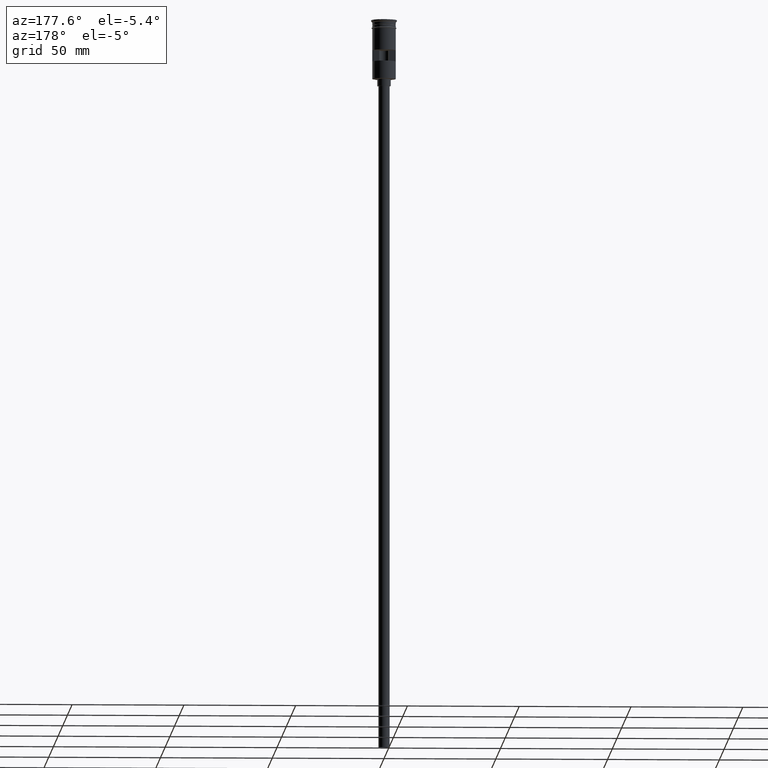
[diagram: clean part render]
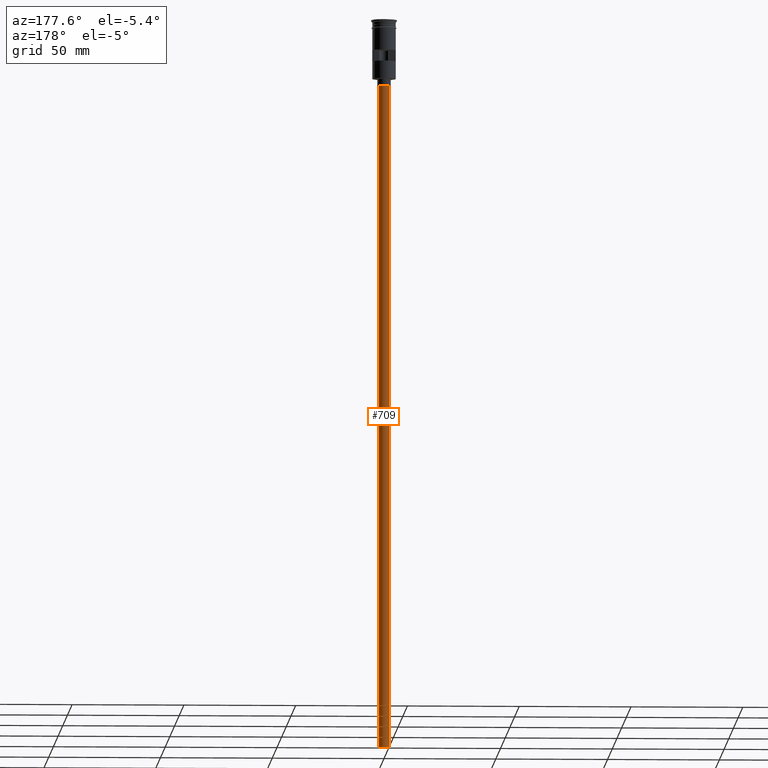
[diagram: same view with one face highlighted and labeled with its STEP entity id]
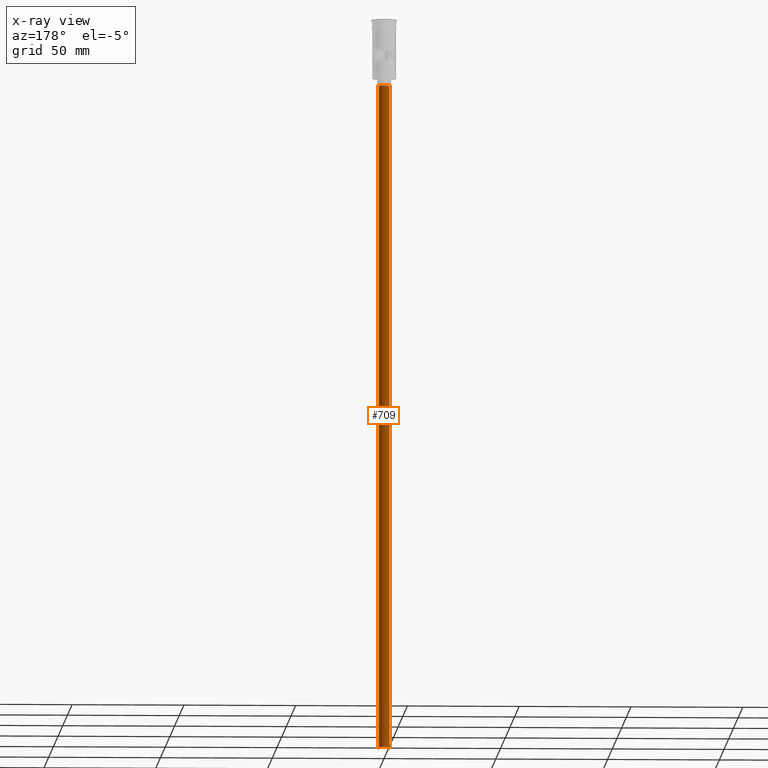
[diagram: x-ray of the same camera — body ghosted, the highlighted face saturated]
A machine part, auxiliary view. The second image highlights one B-rep face of the part: STEP entity #709.
The next image is the same camera in x-ray: the body ghosted, the highlighted face saturated — about 0% of this face is hidden behind the body in this view.
In plain terms, the highlighted cylindrical surface (edge-blend (fillet) strip) has radius 2.5 mm, axis along (-0, -0, 1).
Its self-contained STEP definition (entity closure, byte-faithful):
#10 = CARTESIAN_POINT ( 'NONE',  ( 0.000000000000000000, 0.000000000000000000, -326.5000000000000000 ) ) ;
#25 = CARTESIAN_POINT ( 'NONE',  ( 2.500000000000000000, 0.000000000000000000, -326.5000000000000000 ) ) ;
#52 = CARTESIAN_POINT ( 'NONE',  ( -2.500000000000000000, 3.061616997868383141E-16, -29.50000000000000000 ) ) ;
#173 = CARTESIAN_POINT ( 'NONE',  ( 0.000000000000000000, 0.000000000000000000, -29.50000000000000000 ) ) ;
#180 = VECTOR ( 'NONE', #1270, 1000.000000000000000 ) ;
#187 = LINE ( 'NONE', #1023, #180 ) ;
#198 = DIRECTION ( 'NONE',  ( -1.000000000000000000, 0.000000000000000000, 0.000000000000000000 ) ) ;
#205 = FACE_OUTER_BOUND ( 'NONE', #1306, .T. ) ;
#225 = VERTEX_POINT ( 'NONE', #52 ) ;
#246 = EDGE_CURVE ( 'NONE', #975, #1178, #187, .T. ) ;
#357 = ORIENTED_EDGE ( 'NONE', *, *, #246, .F. ) ;
#362 = ORIENTED_EDGE ( 'NONE', *, *, #676, .F. ) ;
#440 = CARTESIAN_POINT ( 'NONE',  ( 2.500000000000000000, 0.000000000000000000, -29.50000000000000000 ) ) ;
#537 = AXIS2_PLACEMENT_3D ( 'NONE', #649, #1005, #1012 ) ;
#560 = DIRECTION ( 'NONE',  ( 0.000000000000000000, 0.000000000000000000, -1.000000000000000000 ) ) ;
#649 = CARTESIAN_POINT ( 'NONE',  ( 0.000000000000000000, 0.000000000000000000, -326.5000000000000000 ) ) ;
#676 = EDGE_CURVE ( 'NONE', #833, #975, #1333, .T. ) ;
#709 = ADVANCED_FACE ( 'NONE', ( #205 ), #925, .T. ) ;
#752 = ORIENTED_EDGE ( 'NONE', *, *, #1556, .T. ) ;
#833 = VERTEX_POINT ( 'NONE', #1075 ) ;
#876 = AXIS2_PLACEMENT_3D ( 'NONE', #173, #912, #1138 ) ;
#884 = DIRECTION ( 'NONE',  ( -0.000000000000000000, -0.000000000000000000, 1.000000000000000000 ) ) ;
#912 = DIRECTION ( 'NONE',  ( 0.000000000000000000, 0.000000000000000000, -1.000000000000000000 ) ) ;
#925 = CYLINDRICAL_SURFACE ( 'NONE', #537, 2.500000000000000000 ) ;
#942 = EDGE_CURVE ( 'NONE', #833, #225, #1010, .T. ) ;
#975 = VERTEX_POINT ( 'NONE', #25 ) ;
#1005 = DIRECTION ( 'NONE',  ( -0.000000000000000000, -0.000000000000000000, 1.000000000000000000 ) ) ;
#1010 = LINE ( 'NONE', #1237, #1362 ) ;
#1012 = DIRECTION ( 'NONE',  ( 1.000000000000000000, 0.000000000000000000, 0.000000000000000000 ) ) ;
#1023 = CARTESIAN_POINT ( 'NONE',  ( 2.500000000000000000, 0.000000000000000000, -326.5000000000000000 ) ) ;
#1075 = CARTESIAN_POINT ( 'NONE',  ( -2.500000000000000000, 3.061616997868383141E-16, -326.5000000000000000 ) ) ;
#1138 = DIRECTION ( 'NONE',  ( -1.000000000000000000, 0.000000000000000000, 0.000000000000000000 ) ) ;
#1178 = VERTEX_POINT ( 'NONE', #440 ) ;
#1237 = CARTESIAN_POINT ( 'NONE',  ( -2.500000000000000000, 3.061616997868383141E-16, -326.5000000000000000 ) ) ;
#1270 = DIRECTION ( 'NONE',  ( -0.000000000000000000, -0.000000000000000000, 1.000000000000000000 ) ) ;
#1306 = EDGE_LOOP ( 'NONE', ( #362, #1555, #752, #357 ) ) ;
#1333 = CIRCLE ( 'NONE', #1464, 2.500000000000000000 ) ;
#1362 = VECTOR ( 'NONE', #884, 1000.000000000000000 ) ;
#1464 = AXIS2_PLACEMENT_3D ( 'NONE', #10, #560, #198 ) ;
#1541 = CIRCLE ( 'NONE', #876, 2.500000000000000000 ) ;
#1555 = ORIENTED_EDGE ( 'NONE', *, *, #942, .T. ) ;
#1556 = EDGE_CURVE ( 'NONE', #225, #1178, #1541, .T. ) ;